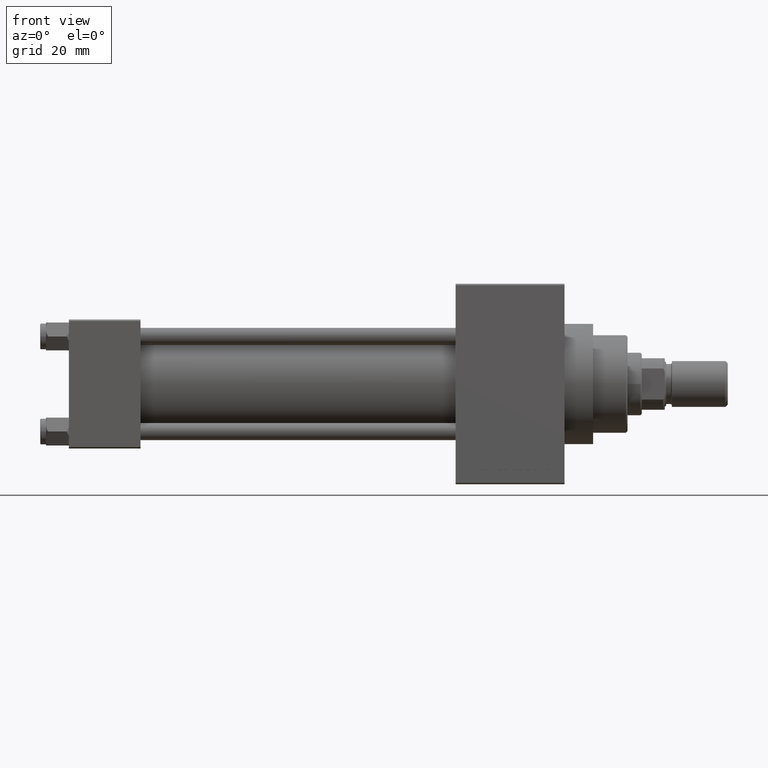
[diagram: clean part render]
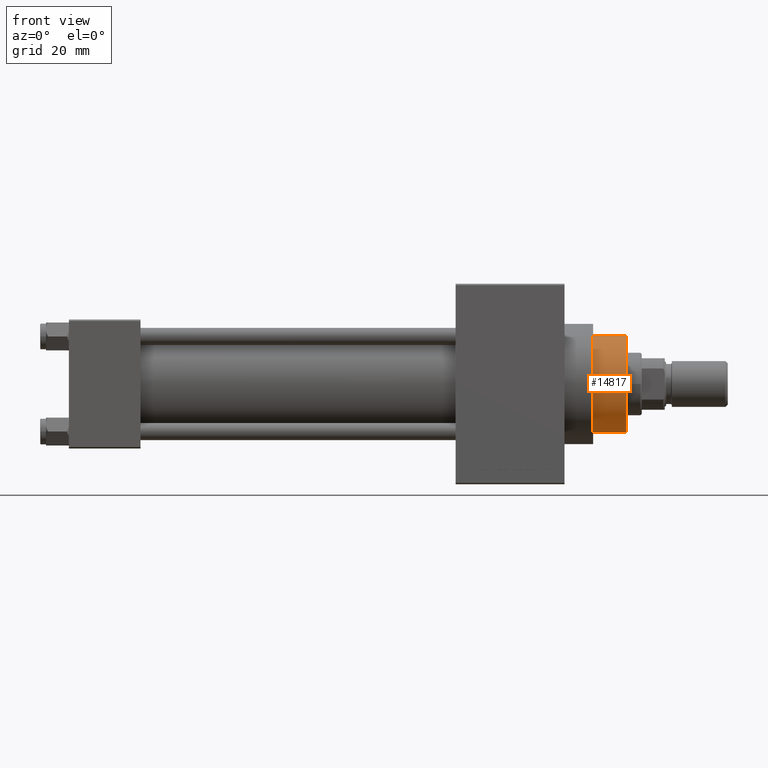
[diagram: same view with one face highlighted and labeled with its STEP entity id]
A machine part, front view. The second image highlights one B-rep face of the part: STEP entity #14817.
In plain terms, the highlighted cylindrical surface (partial cylindrical patch) has radius 17 mm, axis along (-1, 0, 0).
Its self-contained STEP definition (entity closure, byte-faithful):
#801 = CARTESIAN_POINT ( 'NONE',  ( -17.00000000000000000, 0.000000000000000000, 54.76000000000001222 ) ) ;
#1087 = DIRECTION ( 'NONE',  ( -1.000000000000000000, 0.000000000000000000, 0.000000000000000000 ) ) ;
#3747 = CIRCLE ( 'NONE', #39035, 17.00000000000000000 ) ;
#4192 = EDGE_CURVE ( 'NONE', #46623, #47740, #29953, .T. ) ;
#6859 = AXIS2_PLACEMENT_3D ( 'NONE', #23431, #15896, #30480 ) ;
#7005 = DIRECTION ( 'NONE',  ( 0.000000000000000000, 0.000000000000000000, -1.000000000000000000 ) ) ;
#9429 = CARTESIAN_POINT ( 'NONE',  ( 17.00000000000000000, 2.081899558550500280E-15, 54.76000000000001222 ) ) ;
#11593 = DIRECTION ( 'NONE',  ( -0.000000000000000000, -0.000000000000000000, -1.000000000000000000 ) ) ;
#13377 = CYLINDRICAL_SURFACE ( 'NONE', #14721, 17.00000000000000000 ) ;
#14057 = DIRECTION ( 'NONE',  ( -0.000000000000000000, -0.000000000000000000, -1.000000000000000000 ) ) ;
#14367 = VECTOR ( 'NONE', #11593, 1000.000000000000000 ) ;
#14721 = AXIS2_PLACEMENT_3D ( 'NONE', #28205, #48019, #1087 ) ;
#14817 = ADVANCED_FACE ( 'NONE', ( #16655 ), #13377, .T. ) ;
#15896 = DIRECTION ( 'NONE',  ( 0.000000000000000000, 0.000000000000000000, 1.000000000000000000 ) ) ;
#16655 = FACE_OUTER_BOUND ( 'NONE', #21298, .T. ) ;
#16668 = CARTESIAN_POINT ( 'NONE',  ( -17.00000000000000000, 0.000000000000000000, 55.26000000000000512 ) ) ;
#17845 = ORIENTED_EDGE ( 'NONE', *, *, #18168, .F. ) ;
#18168 = EDGE_CURVE ( 'NONE', #23560, #33311, #25611, .T. ) ;
#20486 = CIRCLE ( 'NONE', #6859, 17.00000000000000000 ) ;
#21015 = ORIENTED_EDGE ( 'NONE', *, *, #4192, .T. ) ;
#21072 = ORIENTED_EDGE ( 'NONE', *, *, #22019, .T. ) ;
#21298 = EDGE_LOOP ( 'NONE', ( #21072, #21015, #31123, #17845 ) ) ;
#22019 = EDGE_CURVE ( 'NONE', #23560, #46623, #3747, .T. ) ;
#23431 = CARTESIAN_POINT ( 'NONE',  ( 0.000000000000000000, 0.000000000000000000, 43.25999999999999801 ) ) ;
#23560 = VERTEX_POINT ( 'NONE', #801 ) ;
#25611 = LINE ( 'NONE', #16668, #38898 ) ;
#25845 = CARTESIAN_POINT ( 'NONE',  ( 0.000000000000000000, 0.000000000000000000, 54.76000000000001222 ) ) ;
#28205 = CARTESIAN_POINT ( 'NONE',  ( 0.000000000000000000, 0.000000000000000000, 55.26000000000000512 ) ) ;
#29953 = LINE ( 'NONE', #33718, #14367 ) ;
#30480 = DIRECTION ( 'NONE',  ( 1.000000000000000000, 0.000000000000000000, 0.000000000000000000 ) ) ;
#31123 = ORIENTED_EDGE ( 'NONE', *, *, #47825, .T. ) ;
#33311 = VERTEX_POINT ( 'NONE', #34988 ) ;
#33718 = CARTESIAN_POINT ( 'NONE',  ( 17.00000000000000000, 2.081899558550500280E-15, 55.26000000000000512 ) ) ;
#34988 = CARTESIAN_POINT ( 'NONE',  ( -17.00000000000000000, 0.000000000000000000, 43.25999999999999801 ) ) ;
#37641 = DIRECTION ( 'NONE',  ( 1.000000000000000000, 0.000000000000000000, 0.000000000000000000 ) ) ;
#38898 = VECTOR ( 'NONE', #14057, 1000.000000000000000 ) ;
#39035 = AXIS2_PLACEMENT_3D ( 'NONE', #25845, #7005, #37641 ) ;
#46623 = VERTEX_POINT ( 'NONE', #9429 ) ;
#47740 = VERTEX_POINT ( 'NONE', #48515 ) ;
#47825 = EDGE_CURVE ( 'NONE', #47740, #33311, #20486, .T. ) ;
#48019 = DIRECTION ( 'NONE',  ( -0.000000000000000000, -0.000000000000000000, -1.000000000000000000 ) ) ;
#48515 = CARTESIAN_POINT ( 'NONE',  ( 17.00000000000000000, 2.081899558550500280E-15, 43.25999999999999801 ) ) ;